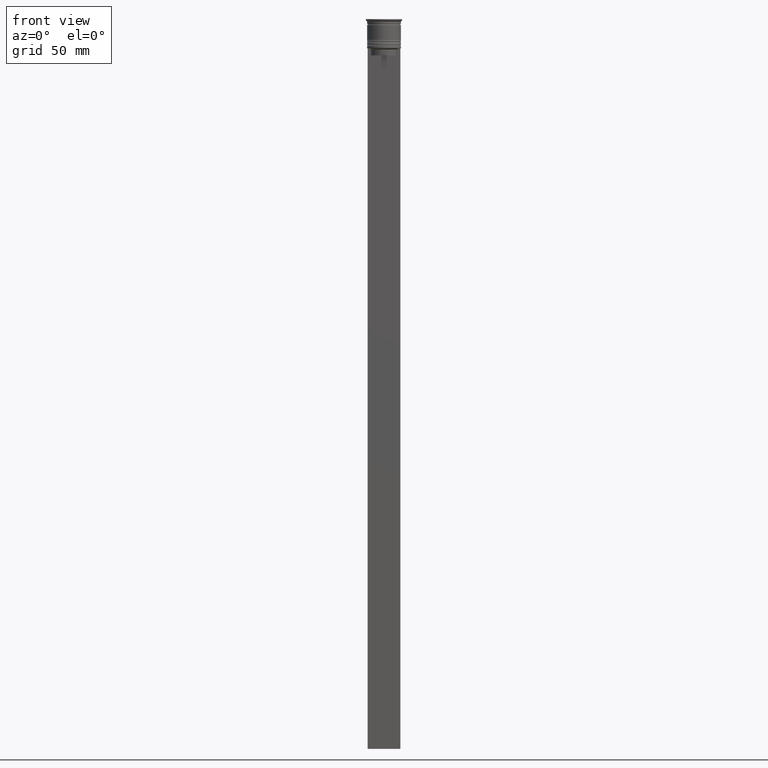
[diagram: clean part render]
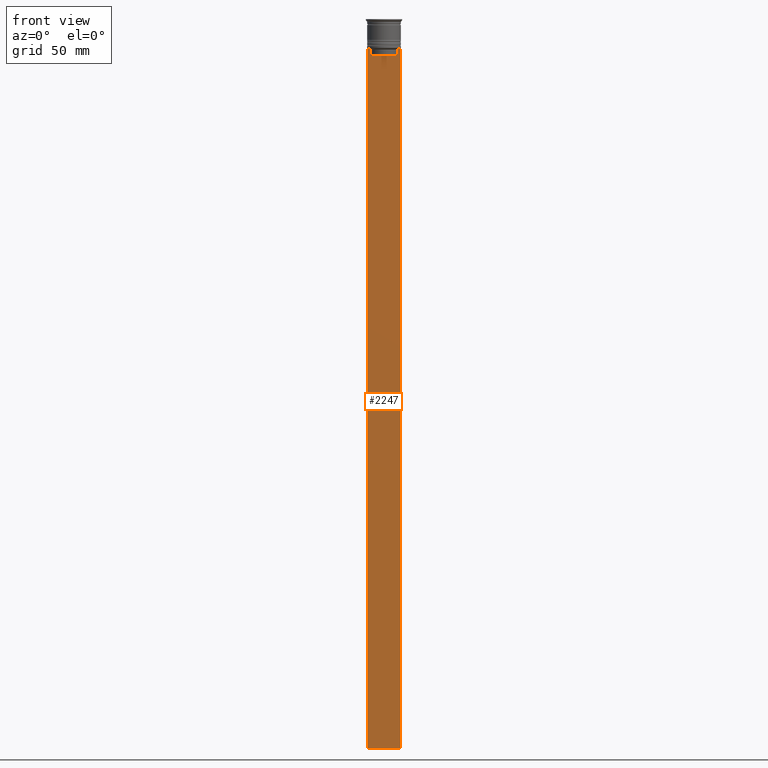
[diagram: same view with one face highlighted and labeled with its STEP entity id]
A machine part, front view. The second image highlights one B-rep face of the part: STEP entity #2247.
In plain terms, the highlighted planar face has unit normal (0, -1, -0).
Its self-contained STEP definition (entity closure, byte-faithful):
#15 = LINE ( 'NONE', #924, #1184 ) ;
#19 = VERTEX_POINT ( 'NONE', #359 ) ;
#58 = ORIENTED_EDGE ( 'NONE', *, *, #1122, .F. ) ;
#60 = CARTESIAN_POINT ( 'NONE',  ( -6.999999999999987566, -0.5000000000000022204, -12.50000000000000000 ) ) ;
#62 = ORIENTED_EDGE ( 'NONE', *, *, #1731, .F. ) ;
#70 = LINE ( 'NONE', #1346, #436 ) ;
#130 = DIRECTION ( 'NONE',  ( 1.000000000000000000, 0.000000000000000000, 0.000000000000000000 ) ) ;
#165 = CARTESIAN_POINT ( 'NONE',  ( 5.627832620112292794, -0.5000000000000022204, 0.000000000000000000 ) ) ;
#189 = CARTESIAN_POINT ( 'NONE',  ( 7.000000000000012434, -0.5000000000000022204, -12.50000000000000000 ) ) ;
#216 = ORIENTED_EDGE ( 'NONE', *, *, #1856, .F. ) ;
#258 = DIRECTION ( 'NONE',  ( 0.000000000000000000, 0.000000000000000000, -1.000000000000000000 ) ) ;
#289 = VERTEX_POINT ( 'NONE', #1561 ) ;
#359 = CARTESIAN_POINT ( 'NONE',  ( -6.999999999999987566, -0.5000000000000022204, -312.5000000000000000 ) ) ;
#436 = VECTOR ( 'NONE', #2055, 1000.000000000000000 ) ;
#499 = EDGE_CURVE ( 'NONE', #1958, #2105, #816, .T. ) ;
#517 = LINE ( 'NONE', #189, #1065 ) ;
#518 = CARTESIAN_POINT ( 'NONE',  ( 6.129641098791995368, -0.5000000000000022204, -12.50000000000000000 ) ) ;
#563 = DIRECTION ( 'NONE',  ( -0.000000000000000000, -0.000000000000000000, 1.000000000000000000 ) ) ;
#574 = VERTEX_POINT ( 'NONE', #978 ) ;
#577 = DIRECTION ( 'NONE',  ( 1.000000000000000000, 0.000000000000000000, 0.000000000000000000 ) ) ;
#590 = ORIENTED_EDGE ( 'NONE', *, *, #1196, .F. ) ;
#660 = CARTESIAN_POINT ( 'NONE',  ( 5.795128760752288777, -0.5000000000000022204, -12.83336023406855375 ) ) ;
#688 = ORIENTED_EDGE ( 'NONE', *, *, #1470, .F. ) ;
#774 = CARTESIAN_POINT ( 'NONE',  ( 6.129641098791995368, -0.5000000000000022204, -12.50000000000000000 ) ) ;
#816 = LINE ( 'NONE', #2211, #1303 ) ;
#845 = AXIS2_PLACEMENT_3D ( 'NONE', #2168, #1797, #2131 ) ;
#878 = CARTESIAN_POINT ( 'NONE',  ( 5.627832620112292794, -0.5000000000000022204, -13.00000000000000000 ) ) ;
#891 = CARTESIAN_POINT ( 'NONE',  ( -5.962396146966409738, -0.5000000000000022204, -12.66669130573587054 ) ) ;
#924 = CARTESIAN_POINT ( 'NONE',  ( -6.999999999999987566, -0.5000000000000022204, 1.535668847618198329 ) ) ;
#946 = DIRECTION ( 'NONE',  ( 0.000000000000000000, 0.000000000000000000, -1.000000000000000000 ) ) ;
#978 = CARTESIAN_POINT ( 'NONE',  ( -5.627832620112292794, -0.5000000000000022204, -15.50000000000000000 ) ) ;
#1023 = VERTEX_POINT ( 'NONE', #1653 ) ;
#1048 = DIRECTION ( 'NONE',  ( 0.000000000000000000, 0.000000000000000000, -1.000000000000000000 ) ) ;
#1059 = VERTEX_POINT ( 'NONE', #1186 ) ;
#1065 = VECTOR ( 'NONE', #1956, 1000.000000000000000 ) ;
#1122 = EDGE_CURVE ( 'NONE', #574, #1059, #1203, .T. ) ;
#1170 = B_SPLINE_CURVE_WITH_KNOTS ( 'NONE', 3,
 ( #1578, #660, #2297, #518 ),
 .UNSPECIFIED., .F., .F.,
 ( 4, 4 ),
 ( 0.02651134470867370918, 0.02721991123504334531 ),
 .UNSPECIFIED. ) ;
#1176 = LINE ( 'NONE', #1526, #1627 ) ;
#1184 = VECTOR ( 'NONE', #1048, 1000.000000000000000 ) ;
#1186 = CARTESIAN_POINT ( 'NONE',  ( 5.627832620112292794, -0.5000000000000022204, -15.50000000000000000 ) ) ;
#1196 = EDGE_CURVE ( 'NONE', #1569, #1023, #517, .T. ) ;
#1203 = LINE ( 'NONE', #1696, #1291 ) ;
#1214 = CARTESIAN_POINT ( 'NONE',  ( -5.627832620112292794, -0.5000000000000022204, -13.00000000000000000 ) ) ;
#1256 = VECTOR ( 'NONE', #563, 1000.000000000000000 ) ;
#1260 = EDGE_CURVE ( 'NONE', #1023, #2106, #1869, .T. ) ;
#1271 = VERTEX_POINT ( 'NONE', #878 ) ;
#1291 = VECTOR ( 'NONE', #130, 1000.000000000000000 ) ;
#1303 = VECTOR ( 'NONE', #577, 1000.000000000000000 ) ;
#1346 = CARTESIAN_POINT ( 'NONE',  ( 7.000000000000012434, -0.5000000000000022204, -312.5000000000000000 ) ) ;
#1374 = CARTESIAN_POINT ( 'NONE',  ( 7.000000000000012434, -0.5000000000000022204, -12.50000000000000000 ) ) ;
#1376 = EDGE_CURVE ( 'NONE', #2106, #574, #1684, .T. ) ;
#1412 = ORIENTED_EDGE ( 'NONE', *, *, #1260, .F. ) ;
#1432 = EDGE_LOOP ( 'NONE', ( #1412, #590, #1489, #1600, #688, #1488, #62, #216, #58, #1573 ) ) ;
#1470 = EDGE_CURVE ( 'NONE', #2105, #289, #1176, .T. ) ;
#1488 = ORIENTED_EDGE ( 'NONE', *, *, #499, .F. ) ;
#1489 = ORIENTED_EDGE ( 'NONE', *, *, #2240, .T. ) ;
#1526 = CARTESIAN_POINT ( 'NONE',  ( 7.000000000000012434, -0.5000000000000022204, 1.535668847618198329 ) ) ;
#1561 = CARTESIAN_POINT ( 'NONE',  ( 7.000000000000012434, -0.5000000000000022204, -312.5000000000000000 ) ) ;
#1569 = VERTEX_POINT ( 'NONE', #60 ) ;
#1573 = ORIENTED_EDGE ( 'NONE', *, *, #1376, .F. ) ;
#1578 = CARTESIAN_POINT ( 'NONE',  ( 5.627832620112292794, -0.5000000000000022204, -13.00000000000000000 ) ) ;
#1600 = ORIENTED_EDGE ( 'NONE', *, *, #2031, .F. ) ;
#1627 = VECTOR ( 'NONE', #258, 1000.000000000000000 ) ;
#1653 = CARTESIAN_POINT ( 'NONE',  ( -6.129641098791995368, -0.5000000000000022204, -12.50000000000000000 ) ) ;
#1684 = LINE ( 'NONE', #2016, #1698 ) ;
#1696 = CARTESIAN_POINT ( 'NONE',  ( 0.000000000000000000, -0.5000000000000022204, -15.50000000000000000 ) ) ;
#1698 = VECTOR ( 'NONE', #946, 1000.000000000000000 ) ;
#1731 = EDGE_CURVE ( 'NONE', #1271, #1958, #1170, .T. ) ;
#1758 = FACE_OUTER_BOUND ( 'NONE', #1432, .T. ) ;
#1774 = CARTESIAN_POINT ( 'NONE',  ( -5.627832620112292794, -0.5000000000000022204, -13.00000000000000000 ) ) ;
#1797 = DIRECTION ( 'NONE',  ( 0.000000000000000000, -1.000000000000000000, -0.000000000000000000 ) ) ;
#1856 = EDGE_CURVE ( 'NONE', #1059, #1271, #2005, .T. ) ;
#1869 = B_SPLINE_CURVE_WITH_KNOTS ( 'NONE', 3,
 ( #1980, #891, #1943, #1774 ),
 .UNSPECIFIED., .F., .F.,
 ( 4, 4 ),
 ( 0.01045365750109871796, 0.01116204421161398619 ),
 .UNSPECIFIED. ) ;
#1943 = CARTESIAN_POINT ( 'NONE',  ( -5.795128834036803234, -0.5000000000000022204, -12.83336016107156574 ) ) ;
#1956 = DIRECTION ( 'NONE',  ( 1.000000000000000000, 0.000000000000000000, 0.000000000000000000 ) ) ;
#1958 = VERTEX_POINT ( 'NONE', #774 ) ;
#1979 = PLANE ( 'NONE',  #845 ) ;
#1980 = CARTESIAN_POINT ( 'NONE',  ( -6.129641098791995368, -0.5000000000000022204, -12.50000000000000000 ) ) ;
#2005 = LINE ( 'NONE', #165, #1256 ) ;
#2016 = CARTESIAN_POINT ( 'NONE',  ( -5.627832620112292794, -0.5000000000000022204, 0.000000000000000000 ) ) ;
#2031 = EDGE_CURVE ( 'NONE', #289, #19, #70, .T. ) ;
#2055 = DIRECTION ( 'NONE',  ( -1.000000000000000000, 0.000000000000000000, 0.000000000000000000 ) ) ;
#2105 = VERTEX_POINT ( 'NONE', #1374 ) ;
#2106 = VERTEX_POINT ( 'NONE', #1214 ) ;
#2131 = DIRECTION ( 'NONE',  ( 0.000000000000000000, 0.000000000000000000, -1.000000000000000000 ) ) ;
#2168 = CARTESIAN_POINT ( 'NONE',  ( 7.000000000000012434, -0.5000000000000022204, 1.535668847618198329 ) ) ;
#2211 = CARTESIAN_POINT ( 'NONE',  ( 7.000000000000012434, -0.5000000000000022204, -12.50000000000000000 ) ) ;
#2240 = EDGE_CURVE ( 'NONE', #1569, #19, #15, .T. ) ;
#2247 = ADVANCED_FACE ( 'NONE', ( #1758 ), #1979, .T. ) ;
#2297 = CARTESIAN_POINT ( 'NONE',  ( 5.962396079681182570, -0.5000000000000022204, -12.66669137279835766 ) ) ;